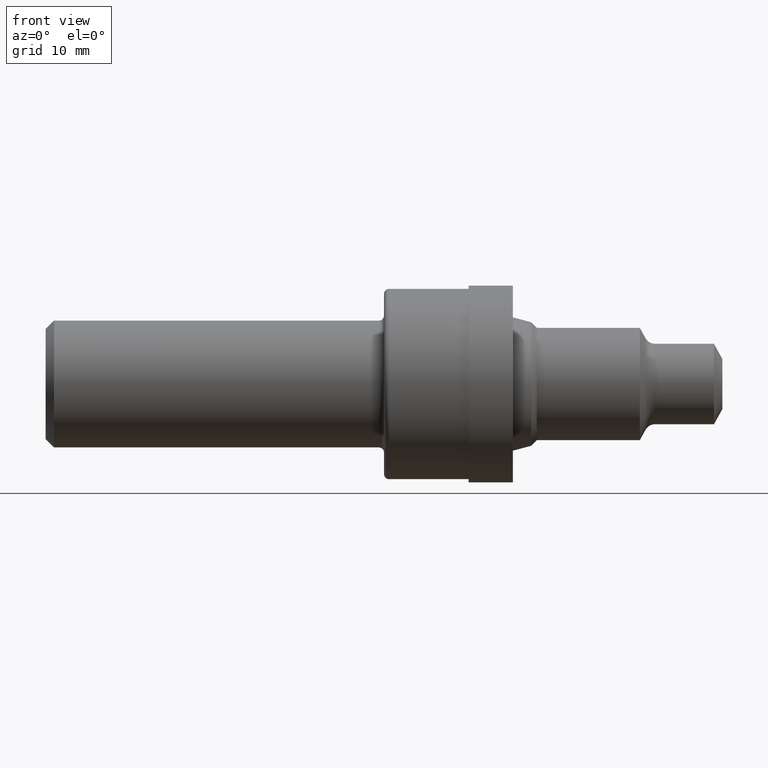
[diagram: clean part render]
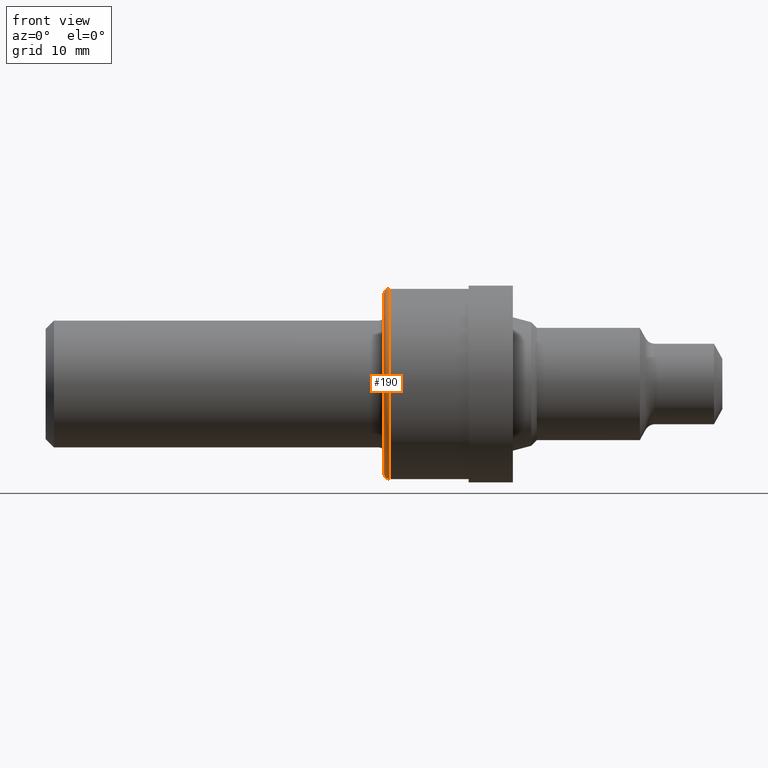
[diagram: same view with one face highlighted and labeled with its STEP entity id]
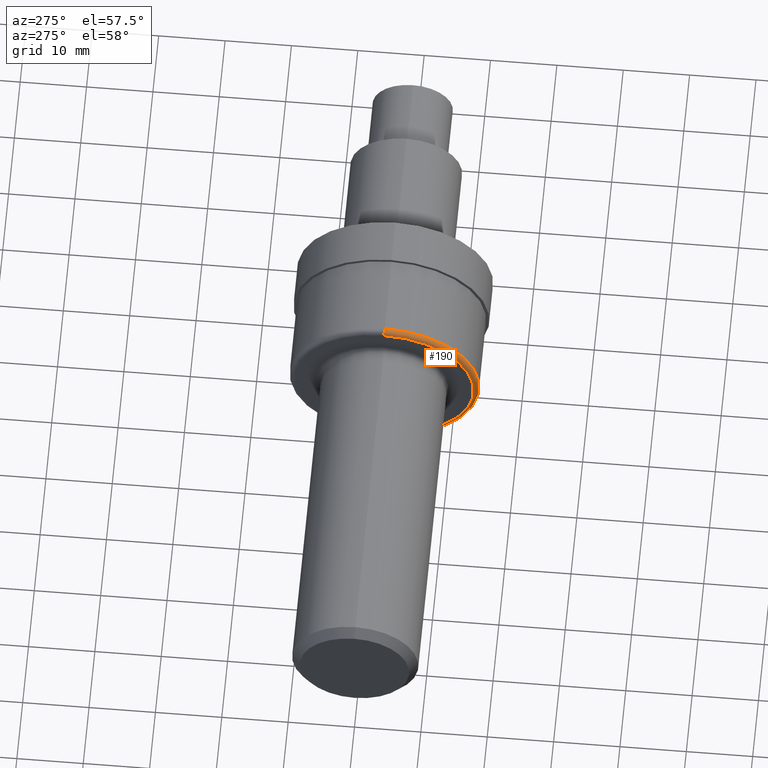
[diagram: same view with one face highlighted and labeled with its STEP entity id]
A machine part, front view. The second image highlights one B-rep face of the part: STEP entity #190.
A second angle (auxiliary view) of the same face is appended — the face is thin or edge-on in the first view.
In plain terms, the highlighted toroidal blend (fillet) surface has major radius 13.5255 mm and minor (blend) radius 0.762 mm.
Its self-contained STEP definition (entity closure, byte-faithful):
#38 = DIRECTION ( 'NONE',  ( -1.000000000000000000, -0.0000000000000000000, -0.0000000000000000000 ) ) ;
#43 = ORIENTED_EDGE ( 'NONE', *, *, #225, .T. ) ;
#56 = CARTESIAN_POINT ( 'NONE',  ( 2.000000000000000000, 6.704941225331759370E-17, -0.5324999999999999734 ) ) ;
#120 = CIRCLE ( 'NONE', #477, 0.5324999999999999734 ) ;
#121 = EDGE_CURVE ( 'NONE', #534, #286, #808, .T. ) ;
#164 = ORIENTED_EDGE ( 'NONE', *, *, #845, .F. ) ;
#190 = ADVANCED_FACE ( 'NONE', ( #519 ), #374, .T. ) ;
#225 = EDGE_CURVE ( 'NONE', #286, #684, #740, .T. ) ;
#227 = CARTESIAN_POINT ( 'NONE',  ( 2.029999999999999805, 0.0000000000000000000, 0.0000000000000000000 ) ) ;
#232 = CARTESIAN_POINT ( 'NONE',  ( 2.000000000000000000, 0.0000000000000000000, 0.0000000000000000000 ) ) ;
#235 = ORIENTED_EDGE ( 'NONE', *, *, #796, .F. ) ;
#253 = CARTESIAN_POINT ( 'NONE',  ( 2.029999999999999805, 0.0000000000000000000, 0.5624999999999998890 ) ) ;
#257 = AXIS2_PLACEMENT_3D ( 'NONE', #561, #754, #368 ) ;
#286 = VERTEX_POINT ( 'NONE', #253 ) ;
#305 = VERTEX_POINT ( 'NONE', #56 ) ;
#333 = ORIENTED_EDGE ( 'NONE', *, *, #121, .T. ) ;
#358 = DIRECTION ( 'NONE',  ( -1.000000000000000000, -0.0000000000000000000, -0.0000000000000000000 ) ) ;
#368 = DIRECTION ( 'NONE',  ( 0.0000000000000000000, 0.0000000000000000000, -1.000000000000000000 ) ) ;
#372 = CIRCLE ( 'NONE', #549, 0.02999999999999995379 ) ;
#374 = TOROIDAL_SURFACE ( 'NONE', #574, 0.5324999999999999734, 0.02999999999999998848 ) ;
#390 = CARTESIAN_POINT ( 'NONE',  ( 2.029999999999999805, 6.521244205459655563E-17, -0.5324999999999999734 ) ) ;
#419 = DIRECTION ( 'NONE',  ( 0.0000000000000000000, 0.0000000000000000000, 1.000000000000000000 ) ) ;
#429 = CARTESIAN_POINT ( 'NONE',  ( 2.029999999999999805, 0.0000000000000000000, 0.0000000000000000000 ) ) ;
#471 = DIRECTION ( 'NONE',  ( 0.0000000000000000000, 0.0000000000000000000, 1.000000000000000000 ) ) ;
#477 = AXIS2_PLACEMENT_3D ( 'NONE', #232, #358, #419 ) ;
#519 = FACE_OUTER_BOUND ( 'NONE', #840, .T. ) ;
#534 = VERTEX_POINT ( 'NONE', #665 ) ;
#538 = DIRECTION ( 'NONE',  ( -1.000000000000000000, -0.0000000000000000000, -0.0000000000000000000 ) ) ;
#549 = AXIS2_PLACEMENT_3D ( 'NONE', #390, #695, #760 ) ;
#550 = CARTESIAN_POINT ( 'NONE',  ( 2.000000000000000000, 0.0000000000000000000, 0.5324999999999999734 ) ) ;
#561 = CARTESIAN_POINT ( 'NONE',  ( 2.029999999999999805, 0.0000000000000000000, 0.5324999999999999734 ) ) ;
#574 = AXIS2_PLACEMENT_3D ( 'NONE', #429, #38, #813 ) ;
#665 = CARTESIAN_POINT ( 'NONE',  ( 2.029999999999999805, 6.888638245203860712E-17, -0.5624999999999998890 ) ) ;
#684 = VERTEX_POINT ( 'NONE', #550 ) ;
#695 = DIRECTION ( 'NONE',  ( -0.0000000000000000000, 1.000000000000000000, 1.224646799147353207E-16 ) ) ;
#740 = CIRCLE ( 'NONE', #257, 0.02999999999999995379 ) ;
#754 = DIRECTION ( 'NONE',  ( 0.0000000000000000000, -1.000000000000000000, 0.0000000000000000000 ) ) ;
#760 = DIRECTION ( 'NONE',  ( 0.0000000000000000000, -1.224646799147354933E-16, 1.000000000000000000 ) ) ;
#796 = EDGE_CURVE ( 'NONE', #305, #684, #120, .T. ) ;
#808 = CIRCLE ( 'NONE', #809, 0.5624999999999998890 ) ;
#809 = AXIS2_PLACEMENT_3D ( 'NONE', #227, #538, #471 ) ;
#813 = DIRECTION ( 'NONE',  ( 0.0000000000000000000, 0.0000000000000000000, 1.000000000000000000 ) ) ;
#840 = EDGE_LOOP ( 'NONE', ( #164, #333, #43, #235 ) ) ;
#845 = EDGE_CURVE ( 'NONE', #534, #305, #372, .T. ) ;